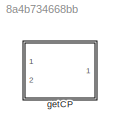
MODEL slx_8a4b734668bb
KIND library
CONFIG AbsTol = auto
CONFIG EnableMultiTasking = off
CONFIG FixedStep = auto
CONFIG MaxStep = auto
CONFIG MinStep = auto
CONFIG RelTol = 1e-3
CONFIG SampleTimeConstraint = Unconstrained
CONFIG Solver = VariableStepAuto
CONFIG SolverName = VariableStepAuto
CONFIG StartTime = 0.0
CONFIG StopTime = 10.0
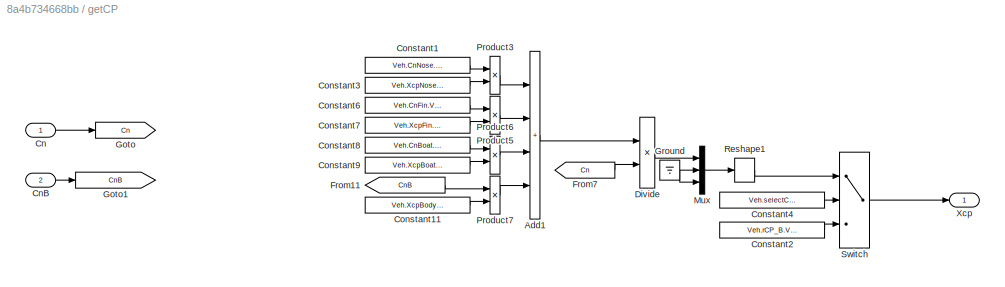
BLOCK [SubSystem] getCP
  Ports = [2, 1]
  RequestExecContextInheritance = off
BLOCK [Sum] getCP/Add1
  IconShape = rectangular
  Inputs = ++++
  Ports = [4, 1]
BLOCK [Inport] getCP/Cn
BLOCK [Inport] getCP/CnB
  Port = 2
BLOCK [Constant] getCP/Constant1
  Value = Veh.CnNose.Value
BLOCK [Constant] getCP/Constant11
  Value = Veh.XcpBody.Value
BLOCK [Constant] getCP/Constant2
  Value = Veh.rCP_B.Value
BLOCK [Constant] getCP/Constant3
  Value = Veh.XcpNose.Value
BLOCK [Constant] getCP/Constant4
  Value = Veh.selectCP.Value
BLOCK [Constant] getCP/Constant6
  Value = Veh.CnFin.Value
BLOCK [Constant] getCP/Constant7
  Value = Veh.XcpFin.Value
BLOCK [Constant] getCP/Constant8
  Value = Veh.CnBoat.Value
BLOCK [Constant] getCP/Constant9
  Value = Veh.XcpBoat.Value
BLOCK [Product] getCP/Divide
  Inputs = */
  Ports = [2, 1]
BLOCK [From] getCP/From11
  GotoTag = CnB
BLOCK [From] getCP/From7
  GotoTag = Cn
BLOCK [Goto] getCP/Goto
  GotoTag = Cn
BLOCK [Goto] getCP/Goto1
  GotoTag = CnB
BLOCK [Ground] getCP/Ground
BLOCK [Mux] getCP/Mux
  DisplayOption = bar
  Inputs = 3
  Ports = [3, 1]
BLOCK [Product] getCP/Product3
  Ports = [2, 1]
BLOCK [Product] getCP/Product5
  Ports = [2, 1]
BLOCK [Product] getCP/Product6
  Ports = [2, 1]
BLOCK [Product] getCP/Product7
  Ports = [2, 1]
BLOCK [Reshape] getCP/Reshape1
  OutputDimensionality = Column vector (2-D)
  Ports = [1, 1]
BLOCK [Switch] getCP/Switch
  Criteria = u2 > Threshold
  InputSameDT = off
  SaturateOnIntegerOverflow = off
  Threshold = .5
BLOCK [Outport] getCP/Xcp
LINE getCP/Add1:1 -> getCP/Divide:1
LINE getCP/Cn:1 -> getCP/Goto:1
LINE getCP/CnB:1 -> getCP/Goto1:1
LINE getCP/Constant11:1 -> getCP/Product7:2
LINE getCP/Constant1:1 -> getCP/Product3:1
LINE getCP/Constant2:1 -> getCP/Switch:3
LINE getCP/Constant3:1 -> getCP/Product3:2
LINE getCP/Constant4:1 -> getCP/Switch:2
LINE getCP/Constant6:1 -> getCP/Product5:1
LINE getCP/Constant7:1 -> getCP/Product5:2
LINE getCP/Constant8:1 -> getCP/Product6:1
LINE getCP/Constant9:1 -> getCP/Product6:2
LINE getCP/Divide:1 -> getCP/Mux:1
LINE getCP/From11:1 -> getCP/Product7:1
LINE getCP/From7:1 -> getCP/Divide:2
NET getCP/Ground:1 -> getCP/Mux:2, getCP/Mux:3
LINE getCP/Mux:1 -> getCP/Reshape1:1
LINE getCP/Product3:1 -> getCP/Add1:1
LINE getCP/Product5:1 -> getCP/Add1:2
LINE getCP/Product6:1 -> getCP/Add1:3
LINE getCP/Product7:1 -> getCP/Add1:4
LINE getCP/Reshape1:1 -> getCP/Switch:1
LINE getCP/Switch:1 -> getCP/Xcp:1
note: NET lines group one-source signal fan-out (src -> all destinations, sorted); 1:1 wires keep LINE
